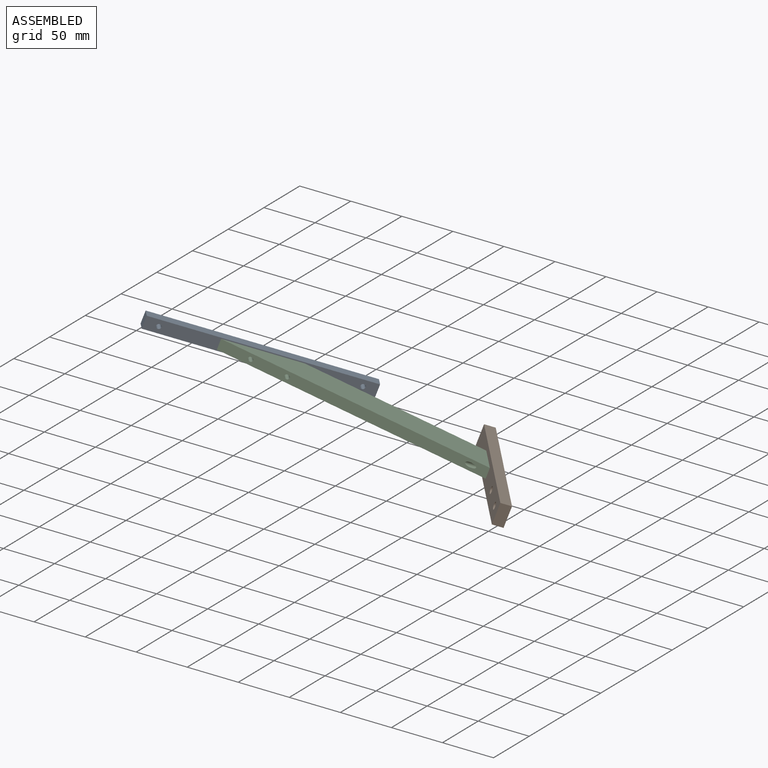
[diagram: assembled view]
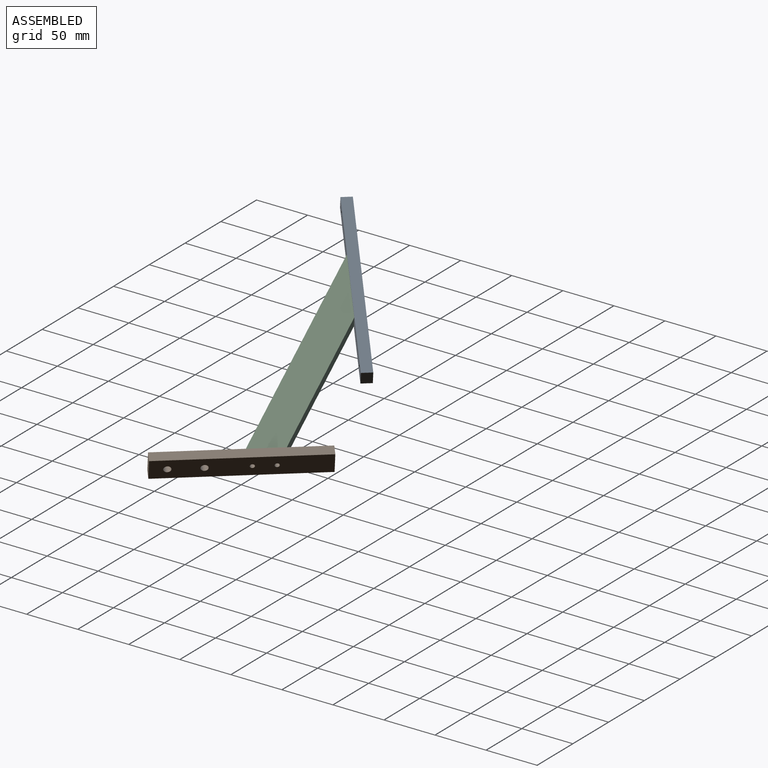
[diagram: assembled view, second angle]
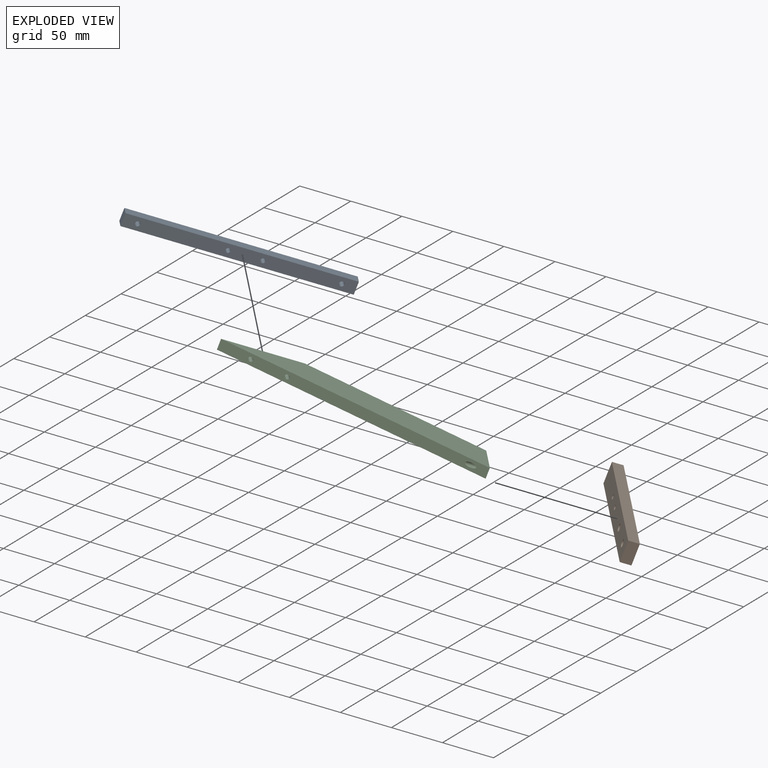
[diagram: exploded view]
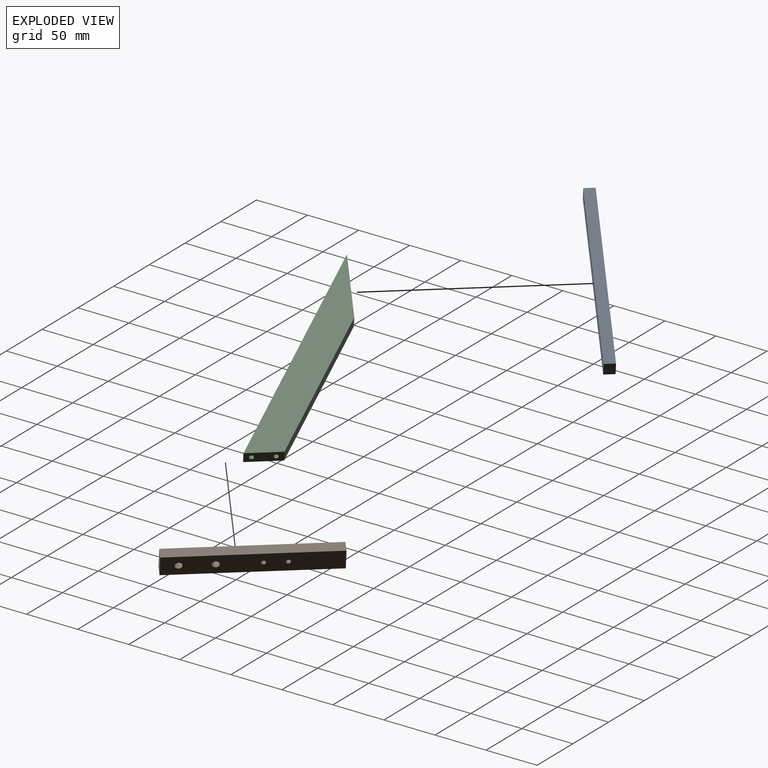
[diagram: exploded view, second angle]
ASSEMBLY  parts=3 mates=4
PART A: 10 faces, bbox 10x12x200 mm
  f0: cylinder r=2.1mm len=10mm, axis (-1,0,0), area 131.9mm2, adj f2,f7
  f1: cylinder r=2.1mm len=10mm, axis (-1,0,0), area 131.9mm2, adj f2,f7
  f2: plane 200x12mm, normal (1,0,0), area 2340.5mm2, adj f0,f1,f3,f4,f5,f6,f8,f9
  f3: plane 200x10mm, normal (0,1,0), area 2000mm2, adj f2,f4,f6,f7
  f4: plane 12x10mm, normal (0,0,1), area 120mm2, adj f2,f3,f5,f7
  f5: plane 200x10mm, normal (0,-1,0), area 2000mm2, adj f2,f4,f6,f7
  f6: plane 12x10mm, normal (0,0,-1), area 120mm2, adj f2,f3,f5,f7
  f7: plane 200x12mm, normal (-1,0,0), area 2340.5mm2, adj f0,f1,f3,f4,f5,f6,f8,f9
  f8: cylinder r=2.25mm len=10mm, axis (1,0,0), area 141.4mm2, adj f2,f7
  f9: cylinder r=2.25mm len=10mm, axis (1,0,0), area 141.4mm2, adj f2,f7
PART B: 10 faces, bbox 150x20x10 mm
  f0: plane 150x20mm, normal (0,0,1), area 2903.9mm2, adj f1,f3,f4,f5,f6,f7,f8,f9
  f1: plane 20x10mm, normal (1,0,0), area 200mm2, adj f0,f2,f3,f4
  f2: plane 150x20mm, normal (0,0,-1), area 2903.9mm2, adj f1,f3,f4,f5,f6,f7,f8,f9
  f3: plane 150x10mm, normal (0,1,0), area 1500mm2, adj f0,f1,f2,f7
  f4: plane 150x10mm, normal (0,-1,0), area 1500mm2, adj f0,f1,f2,f7
  f5: cylinder r=3.3mm len=10mm, axis (0,0,1), area 207.3mm2, adj f0,f2
  f6: cylinder r=3.3mm len=10mm, axis (0,0,1), area 207.3mm2, adj f0,f2
  f7: plane 20x10mm, normal (-1,0,0), area 200mm2, adj f0,f2,f3,f4
  f8: cylinder r=2.1mm len=10mm, axis (0,0,-1), area 131.9mm2, adj f0,f2
  f9: cylinder r=2.1mm len=10mm, axis (0,0,-1), area 131.9mm2, adj f0,f2
PART C: 11 faces, bbox 103.4x11.9x222.8 mm
  f0: cylinder r=2.1mm len=26.68mm, axis (-1,0,0), area 339.1mm2, adj f3,f10
  f1: cylinder r=2.1mm len=12.89mm, axis (-1,0,0), area 157.2mm2, adj f3,f10
  f2: cylinder r=2.1mm len=18.73mm, axis (0,0,-1), area 186.9mm2, adj f3,f7
  f3: plane 222.85x103.44mm, normal (0.91,0,0.42), area 2367.6mm2, adj f0,f1,f2,f5,f6,f7,f10
  f4: plane 149.07x68.5mm, normal (-0.91,0,-0.42), area 1640.6mm2, adj f5,f6,f7,f10
  f5: plane 220.93x101.52mm, normal (0,1,0), area 6107.9mm2, adj f3,f4,f7,f10
  f6: plane 220.93x101.52mm, normal (0,-1,0), area 6107.9mm2, adj f3,f4,f7,f10
  f7: plane 33.02x10mm, normal (0,0,-1), area 302.4mm2, adj f2,f3,f4,f5,f6,f9
  f8: cone r=0mm half-angle=59deg, axis (0,0,-1), area 16.2mm2, adj f9
  f9: cylinder r=2.1mm len=30mm, axis (0,0,-1), area 395.8mm2, adj f7,f8
  f10: plane 71.85x10mm, normal (-1,0,0), area 690.8mm2, adj f0,f1,f3,f4,f5,f6
PLACE A rot(axis=(0.78,-0.36,-0.52),84.1deg) t=(250.72,264.74,116.99)mm
PLACE B rot(axis=(0.78,-0.36,-0.52),84.1deg) t=(250.72,264.74,116.99)mm
PLACE C rot(axis=(0.78,-0.36,-0.52),84.1deg) t=(250.72,264.74,116.99)mm
MATE slider A.f1 <-> C.f1  axis (0.64,-0.77,0) through (249.95,251.04,120.41)mm
MATE planar C.f7 <-> B.f0  axis (0.72,0.6,-0.34) through (444.96,303.7,53.72)mm
MATE planar A.f2 <-> C.f10  axis (0.64,-0.77,0) through (257.1,257.04,117.01)mm
MATE slider B.f8 <-> C.f8  axis (0.72,0.6,-0.34) through (445.73,317.4,50.3)mm
